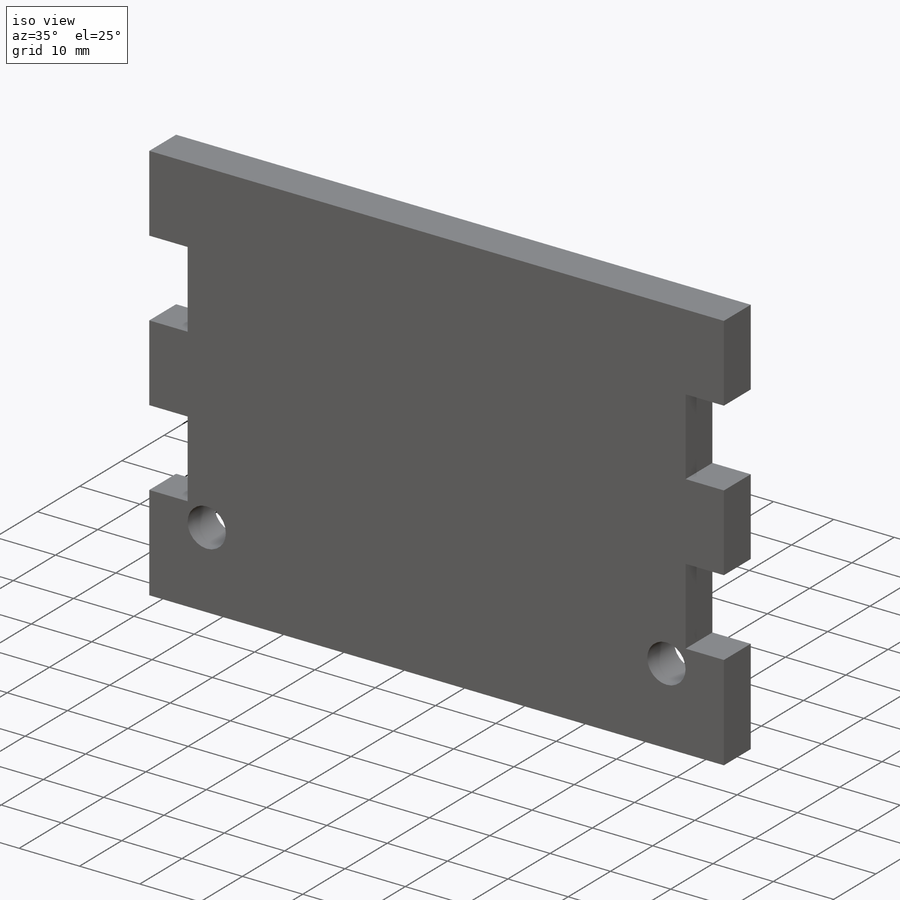
[diagram: iso view]
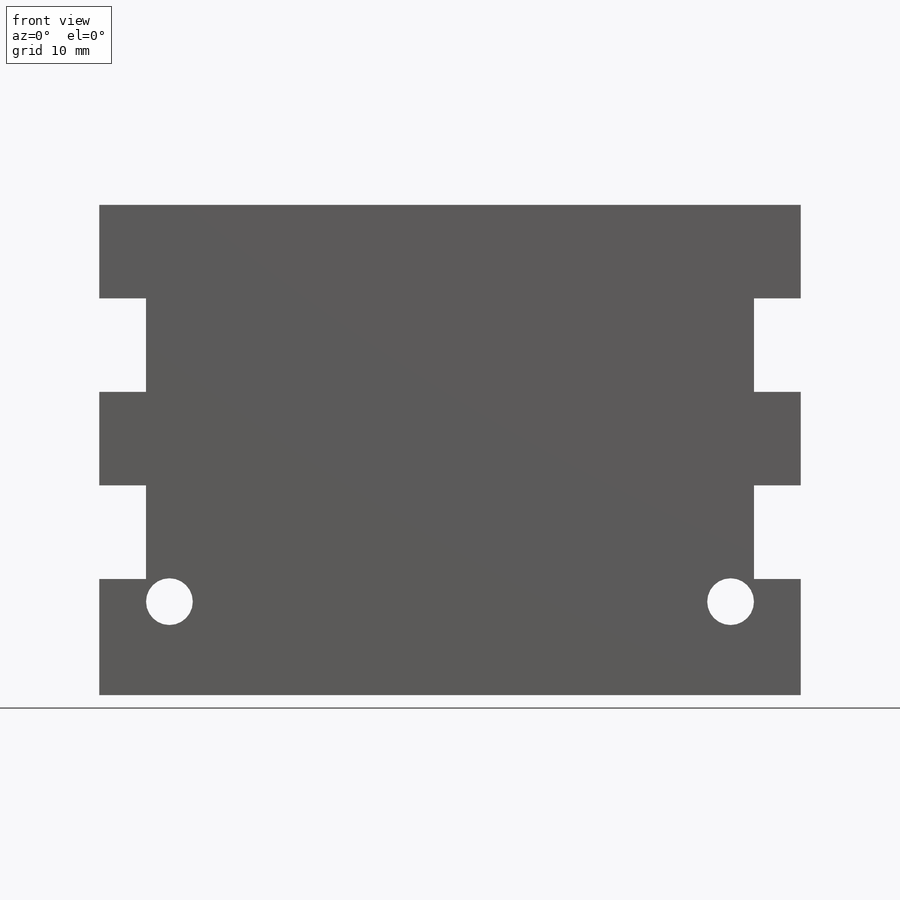
[diagram: front view]
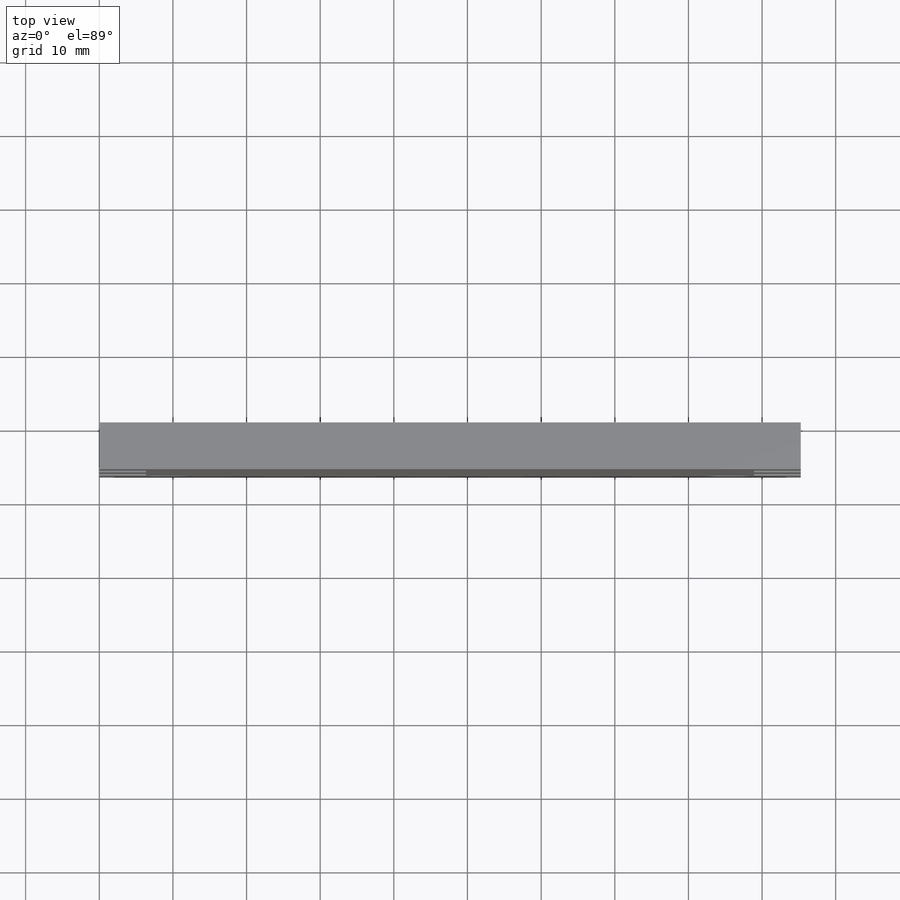
[diagram: top view]
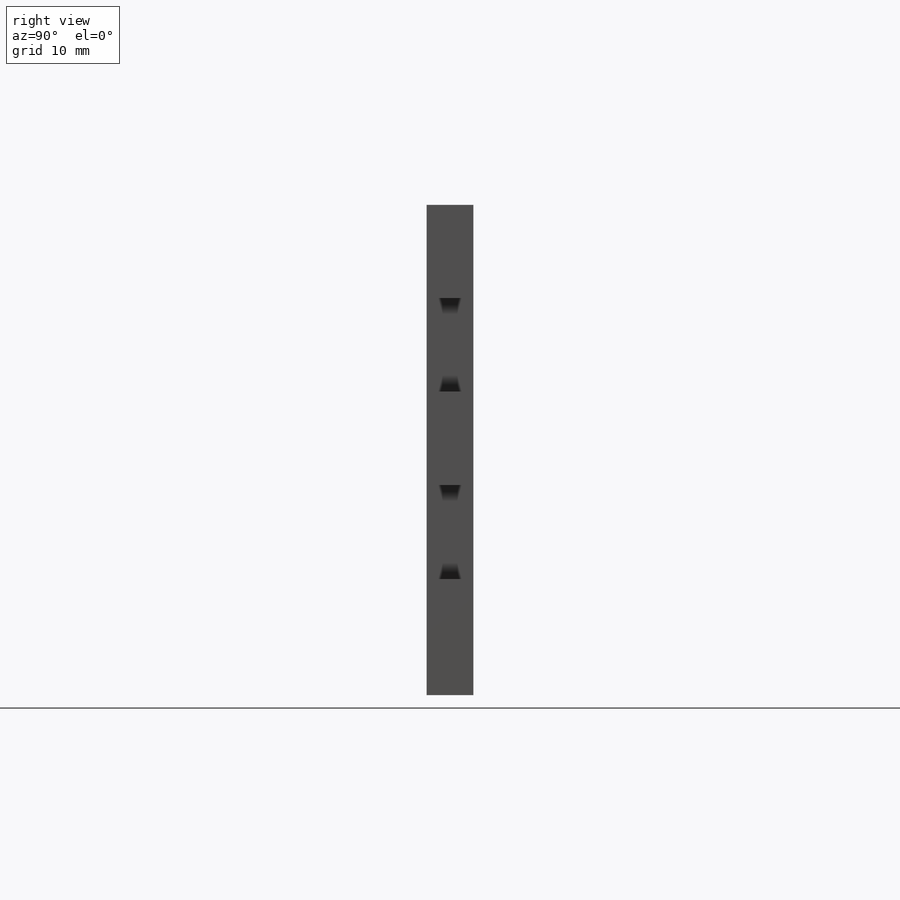
[diagram: right view]
SOLIDWORKS PART (.sldprt)
format: sldprt  version: not decoded by parser v0  size: 946,688 bytes
history: native  units: mm
features: sketch x17, cut_extrude x11, extrude x5, pattern_linear x2, chamfer x2, material x1, boolean_combine x1 (+13 scaffold rows collapsed)
feature tree (52):
  scaffold x13  (default folders/planes/origin — collapsed)
  material  "Pine"
  sketch  "Sketch2"  dims[c1.D1=304.8mm c1.D2=95.25mm c2.D1=~262.38471mm c3.D1=5.0deg c3.D3=304.8mm]
  extrude  "Boss-Extrude1"  Depth=6.35mm
  sketch  "Sketch3"  dims[D1=12.7mm D2=6.35mm D3=12.7mm]
  cut_extrude  "Cut-Extrude1"  [1 undecoded]
  pattern_linear  "LPattern1"  Count1=12 Count2=1 Spacing1=25.4mm Spacing2=2.54mm
  sketch  "Sketch4"  dims[c1.D1=12.7mm c1.D2=12.7mm c1.D3=12.7mm c1.D4=12.7mm c1.D5=6.35mm c1.D6=~12.23998mm c2.D6=5.0deg]
  cut_extrude  "Cut-Extrude2"  [1 undecoded]
  sketch  "Sketch6"  dims[D6=3.5mm D1=304.8mm D2=85.0deg D3=38.1mm D4=50.8mm D5=30.0deg D7=101.6mm D8=19.05mm D9=24.892mm D10=19.05mm D11=5.0deg D12=6.35mm D13=31.75mm D14=6.35mm D15=368.3mm]
  sketch  "Sketch5"
  cut_extrude  "Cut-Extrude3"  [1 undecoded]
  sketch  "Sketch8"
  cut_extrude  "Cut-Extrude5"  [1 undecoded]
  sketch  "Sketch9"  dims[D1=6.35mm D2=6.35mm D3=6.35mm D4=6.35mm]
  extrude  "Boss-Extrude3"  Depth=6.35mm
  sketch  "Sketch12"  dims[D1=25.4mm D2=19.05mm]
  cut_extrude  "Cut-Extrude8"  Depth=25.4mm
  cut_extrude  "Cut-Extrude9"  [1 undecoded]
  sketch  "Sketch9<2>"  dims[D1=6.35mm]
  boolean_combine  "Combine1"
  sketch  "Sketch14"
  extrude  "Boss-Extrude4"  [1 undecoded]
  sketch  "Sketch15"  dims[D1=6.35mm D2=6.35mm D3=6.35mm D4=6.35mm]
  cut_extrude  "Cut-Extrude11"  Depth=6.35mm
  chamfer  "Chamfer1"  Distance=3.175mm
  sketch  "Sketch17"
  extrude  "Boss-Extrude5"  [1 undecoded]
  sketch  "Sketch18"
  cut_extrude  "Cut-Extrude12"  [1 undecoded]
  chamfer  "Chamfer2"  Distance=3.175mm Angle=45deg
  sketch  "Sketch19"
  extrude  "Boss-Extrude6"  Depth=6.35mm
  pattern_linear  "LPattern2"  Count1=5 Count2=1 Spacing1=25.4mm Spacing2=2.54mm
  sketch  "Sketch20"  dims[D4=6.35mm D1=9.525mm D2=9.525mm D3=12.7mm D5=12.7mm]
  cut_extrude  "Cut-Extrude13"  [1 undecoded]
  sketch  "Sketch22"  dims[c1.D1=3.5mm c1.D3=6.35mm c1.D2=15.875mm c2.D3=15.875mm]
  cut_extrude  "Cut-Extrude14"  [1 undecoded]
  sketch  "Sketch23"
  cut_extrude  "Cut-Extrude15"  [1 undecoded]
decode coverage: 19 of 38 modeling features carry decoded parameters
note: ~ marks probable driven/reference dimensions
note: 11 parameter values undecoded
summary: no parameter record found for 11 features
note: suppression state not decoded; provenance and decode notes live in map.json
